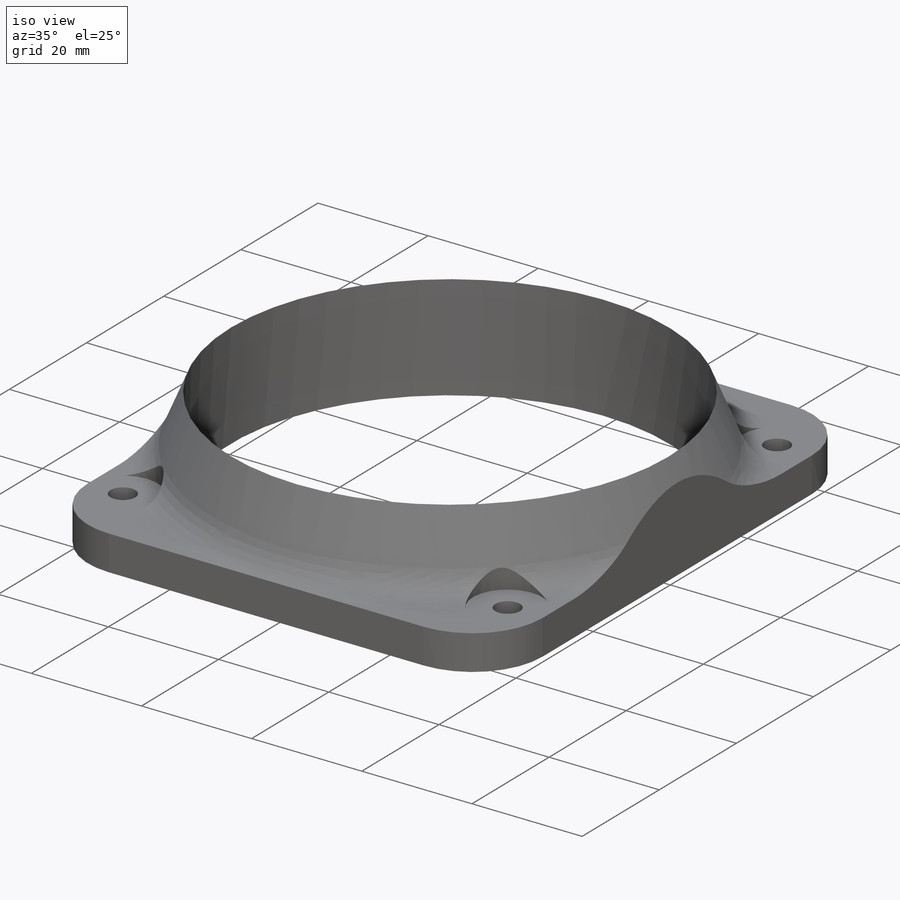
[diagram: iso view]
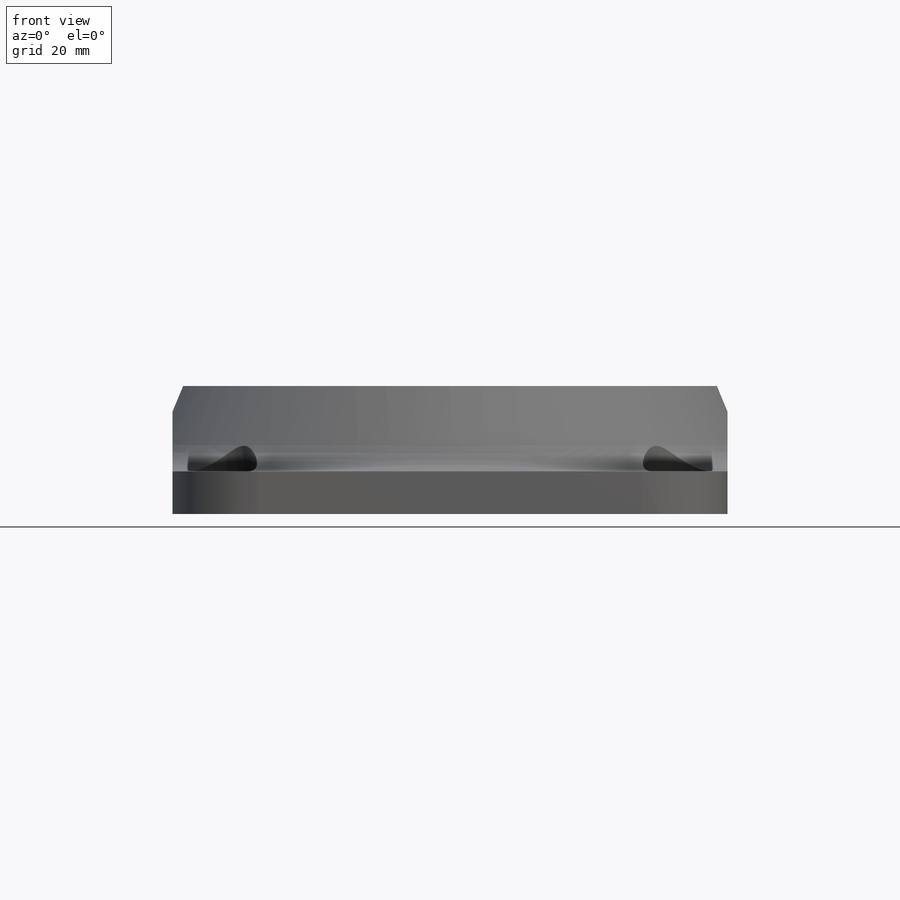
[diagram: front view]
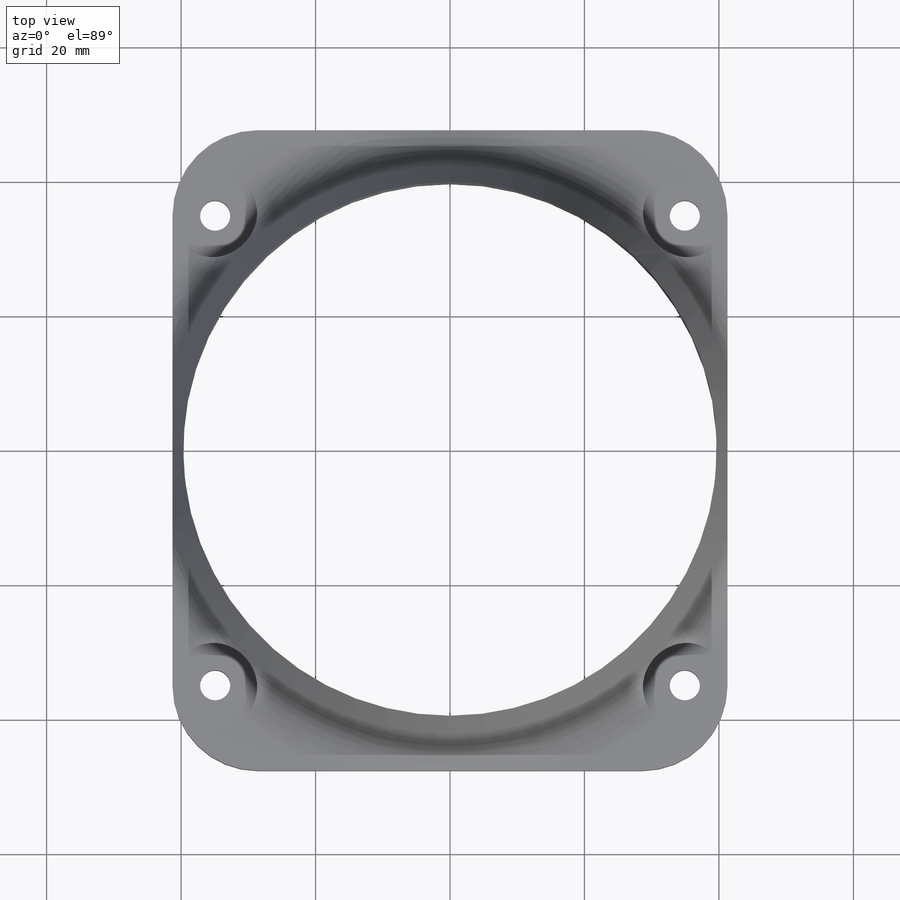
[diagram: top view]
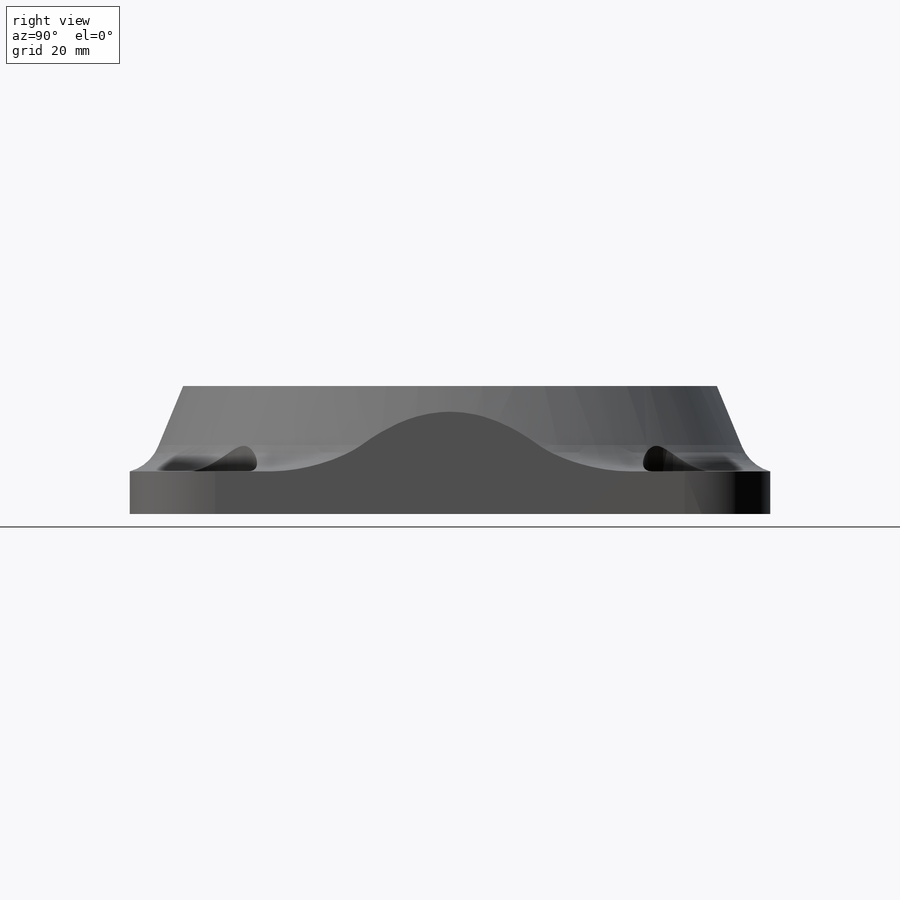
[diagram: right view]
SOLIDWORKS PART (.sldprt)
format: sldprt  version: not decoded by parser v0  size: 296,960 bytes
history: native  units: mm
features: sketch x5, cut_extrude x3, fillet x2, material x1, extrude x1, revolve x1, pattern_circular x1 (+13 scaffold rows collapsed)
feature tree (27):
  scaffold x13  (default folders/planes/origin — collapsed)
  material  "ABS"
  sketch  "Sketch1"  dims[D3=76.2mm D5=4.5mm D1=82.55mm D2=95.25mm D4=69.85mm]
  extrude  "Boss-Extrude1"  Depth=6.35mm
  fillet  "Fillet1"  Radius=12.7mm
  sketch  "Sketch2"  dims[D1=1.5875mm]
  cut_extrude  "Cut-Extrude1"  [1 undecoded]
  sketch  "Sketch3"  dims[c1.D1=12.7mm c1.D2=12.7mm c2.D2=22.5deg]
  revolve  "Revolve1"  Angle=360deg
  sketch  "Sketch4"
  cut_extrude  "Cut-Extrude2"  [1 undecoded]
  fillet  "Fillet3"  Radius=6.35mm
  sketch  "Sketch5"  dims[D1=12.7mm]
  cut_extrude  "Cut-Extrude3"  [1 undecoded]
  pattern_circular  "CirPattern1"  Count=4 Angle=360deg
decode coverage: 9 of 13 modeling features carry decoded parameters
note: 3 parameter values undecoded
summary: no parameter record found for 3 features
note: suppression state not decoded; provenance and decode notes live in map.json
